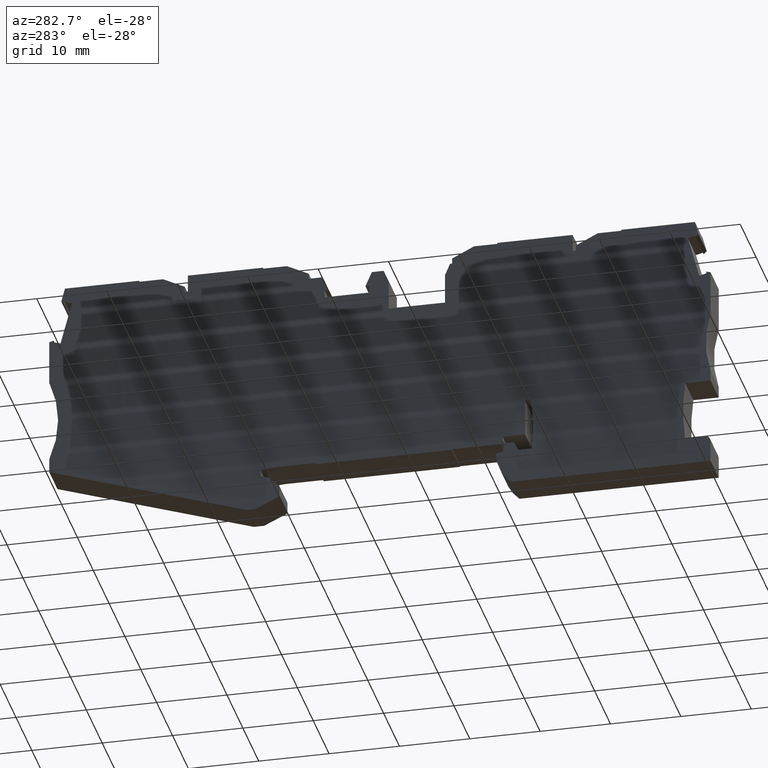
[diagram: clean part render]
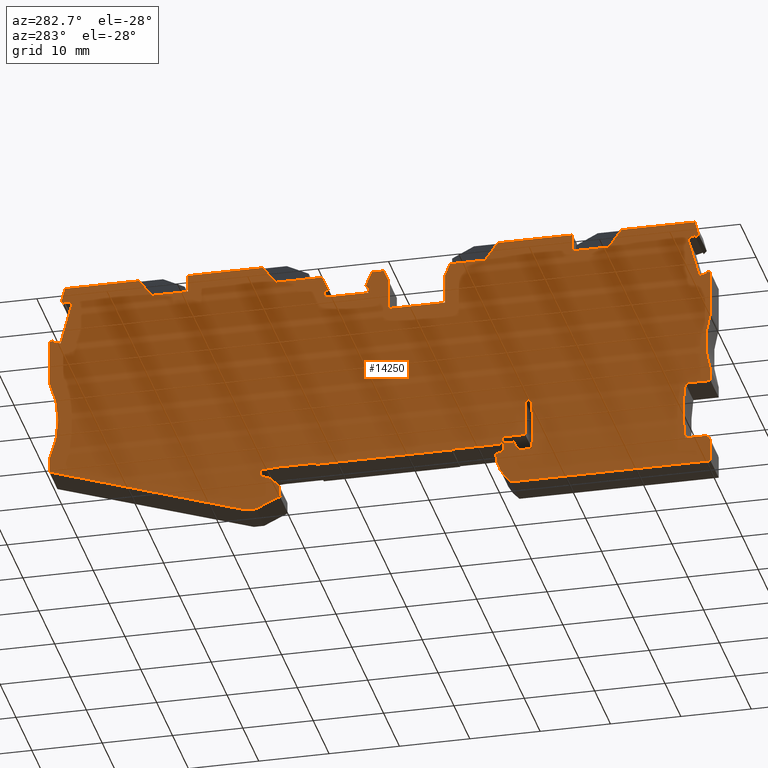
[diagram: same view with one face highlighted and labeled with its STEP entity id]
A machine part, auxiliary view. The second image highlights one B-rep face of the part: STEP entity #14250.
In plain terms, the highlighted planar face has unit normal (-1, 0, 0).
Its self-contained STEP definition (entity closure, byte-faithful):
#120=CARTESIAN_POINT('',(52.0264251236377,4.89735926884869,
-5.15000000007079));
#130=VERTEX_POINT('',#120);
#280=CARTESIAN_POINT('',(50.7320747686653,3.2406663628757,
-5.15000000007186));
#290=VERTEX_POINT('',#280);
#320=CARTESIAN_POINT('',(48.2001887190481,1.64994100184898E-12,
-5.15000000007395));
#330=DIRECTION('',(-0.615661475325658,-0.788010753606723,
-5.08327445958136E-13));
#340=VECTOR('',#330,1.);
#350=LINE('',#320,#340);
#360=EDGE_CURVE('',#130,#290,#350,.T.);
#590=CARTESIAN_POINT('',(50.9335437868773,1.59983288405357,
-5.15000000007281));
#600=VERTEX_POINT('',#590);
#750=CARTESIAN_POINT('',(54.4182978726985,0.467567645042185,
-5.15000000007321));
#760=VERTEX_POINT('',#750);
#790=CARTESIAN_POINT('',(-1.69343616989078E-12,18.1491444593517,
-5.15000000006689));
#800=DIRECTION('',(0.951056516295154,-0.309016994374947,
-1.10549333441268E-13));
#810=VECTOR('',#800,1.);
#820=LINE('',#790,#810);
#830=EDGE_CURVE('',#600,#760,#820,.T.);
#7720=CARTESIAN_POINT('',(51.2005685226322,33.1653725649591,
-5.15000000004703));
#7730=DIRECTION('',(7.41216508193737E-14,5.86845761098081E-13,-1.));
#7740=DIRECTION('',(-0.992546151641485,-0.121869343403826,
-1.45087666858425E-13));
#7750=AXIS2_PLACEMENT_3D('',#7720,#7730,#7740);
#7760=PLANE('',#7750);
#7770=ORIENTED_EDGE('',*,*,#830,.F.);
#7780=CARTESIAN_POINT('',(-2.61004901279394E-12,-6.21415916436368,
-5.15000000008119));
#7790=DIRECTION('',(0.992546151641272,0.121869343405557,
1.45408273460483E-13));
#7800=VECTOR('',#7790,1.);
#7810=LINE('',#7780,#7800);
#7820=CARTESIAN_POINT('',(55.8575904551349,0.644290552788054,
-5.150000000073));
#7830=VERTEX_POINT('',#7820);
#7840=EDGE_CURVE('',#760,#7830,#7810,.T.);
#7850=ORIENTED_EDGE('',*,*,#7840,.F.);
#7860=CARTESIAN_POINT('',(-3.34227452304577E-12,-25.6765009430287,
-5.15000000009261));
#7870=DIRECTION('',(0.904601039469285,0.426259263114703,
3.17498382901155E-13));
#7880=VECTOR('',#7870,1.);
#7890=LINE('',#7860,#7880);
#7900=CARTESIAN_POINT('',(82.4574372953299,13.1784692883304,
-5.15000000006367));
#7910=VERTEX_POINT('',#7900);
#7920=EDGE_CURVE('',#7830,#7910,#7890,.T.);
#7930=ORIENTED_EDGE('',*,*,#7920,.F.);
#7940=CARTESIAN_POINT('',(84.0755498602694,3.00213671199295E-13,
-5.15000000007128));
#7950=DIRECTION('',(-0.12186934340511,0.992546151641327,
5.73390757286388E-13));
#7960=VECTOR('',#7950,1.);
#7970=LINE('',#7940,#7960);
#7980=CARTESIAN_POINT('',(82.2135822231573,15.1645094743228,
-5.15000000005742));
#7990=VERTEX_POINT('',#7980);
#8000=EDGE_CURVE('',#7910,#7990,#7970,.T.);
#8010=ORIENTED_EDGE('',*,*,#8000,.F.);
#8020=CARTESIAN_POINT('',(95.1276197746272,22.7952128573161,
-5.15000000005708));
#8030=DIRECTION('',(-2.47610274017394E-14,-3.00054079505067E-15,1.));
#8040=DIRECTION('',(0.992546151641327,0.12186934340511,
2.49421363947495E-14));
#8050=AXIS2_PLACEMENT_3D('',#8020,#8030,#8040);
#8060=CIRCLE('',#8050,15.);
#8070=CARTESIAN_POINT('',(80.7511501013408,27.0750632908097,
-5.15000000005742));
#8080=VERTEX_POINT('',#8070);
#8090=EDGE_CURVE('',#8080,#7990,#8060,.T.);
#8100=ORIENTED_EDGE('',*,*,#8090,.T.);
#8110=CARTESIAN_POINT('',(83.8121891997318,2.14490044393082,
-5.150000000069));
#8120=DIRECTION('',(-0.12186934340511,0.992546151641328,
-1.25369758141076E-16));
#8130=VECTOR('',#8120,1.);
#8140=LINE('',#8110,#8130);
#8150=CARTESIAN_POINT('',(79.971195970816,33.4272799277345,
-5.15000000005197));
#8160=VERTEX_POINT('',#8150);
#8170=EDGE_CURVE('',#8080,#8160,#8140,.T.);
#8180=ORIENTED_EDGE('',*,*,#8170,.F.);
#8190=CARTESIAN_POINT('',(84.3935909987457,32.8057528391582,
-5.15000000010181));
#8200=DIRECTION('',(0.990268068742578,-0.139173100952904,
4.79939087970401E-14));
#8210=VECTOR('',#8200,1.);
#8220=LINE('',#8190,#8210);
#8230=CARTESIAN_POINT('',(79.3161911343738,33.5193348541774,
-5.15000000005197));
#8240=VERTEX_POINT('',#8230);
#8250=EDGE_CURVE('',#8240,#8160,#8220,.T.);
#8260=ORIENTED_EDGE('',*,*,#8250,.T.);
#8270=CARTESIAN_POINT('',(88.5328933703175,10.7071963181875,
-5.15000000006886));
#8280=DIRECTION('',(0.374606593416575,-0.927183854566521,
6.59579020590538E-15));
#8290=VECTOR('',#8280,1.);
#8300=LINE('',#8270,#8290);
#8310=CARTESIAN_POINT('',(79.4181993646876,33.2668556243878,
-5.15000000005211));
#8320=VERTEX_POINT('',#8310);
#8330=EDGE_CURVE('',#8240,#8320,#8300,.T.);
#8340=ORIENTED_EDGE('',*,*,#8330,.F.);
#8350=CARTESIAN_POINT('',(83.8338176270038,35.0508812056414,
-5.15000000006891));
#8360=DIRECTION('',(0.927183854566705,0.374606593416117,
2.41441940387461E-14));
#8370=VECTOR('',#8360,1.);
#8380=LINE('',#8350,#8370);
#8390=CARTESIAN_POINT('',(78.426112640302,32.8660265694329,
-5.15000000005242));
#8400=VERTEX_POINT('',#8390);
#8410=EDGE_CURVE('',#8400,#8320,#8380,.T.);
#8420=ORIENTED_EDGE('',*,*,#8410,.T.);
#8430=CARTESIAN_POINT('',(87.4844737959631,10.445795959572,
-5.15000000010179));
#8440=DIRECTION('',(-0.374606593416094,0.927183854566715,
-1.29656948096796E-14));
#8450=VECTOR('',#8440,1.);
#8460=LINE('',#8430,#8450);
#8470=CARTESIAN_POINT('',(76.0567259369452,38.7304644495676,
-5.15000000004915));
#8480=VERTEX_POINT('',#8470);
#8490=EDGE_CURVE('',#8400,#8480,#8460,.T.);
#8500=ORIENTED_EDGE('',*,*,#8490,.F.);
#8510=CARTESIAN_POINT('',(82.288623918383,41.2483146707968,
-5.15000000006893));
#8520=DIRECTION('',(-0.927183854566836,-0.374606593415795,
-2.41441940387486E-14));
#8530=VECTOR('',#8520,1.);
#8540=LINE('',#8510,#8530);
#8550=CARTESIAN_POINT('',(77.0488126613318,39.1312935045226,
-5.15000000004884));
#8560=VERTEX_POINT('',#8550);
#8570=EDGE_CURVE('',#8560,#8480,#8540,.T.);
#8580=ORIENTED_EDGE('',*,*,#8570,.T.);
#8590=CARTESIAN_POINT('',(88.5328933702816,10.7071963181785,
-5.15000000006886));
#8600=DIRECTION('',(-0.374606593415338,0.927183854567021,
-6.59579020587315E-15));
#8610=VECTOR('',#8600,1.);
#8620=LINE('',#8590,#8610);
#8630=CARTESIAN_POINT('',(77.1508208916462,38.8788142747308,
-5.15000000004898));
#8640=VERTEX_POINT('',#8630);
#8650=EDGE_CURVE('',#8640,#8560,#8620,.T.);
#8660=ORIENTED_EDGE('',*,*,#8650,.T.);
#8670=CARTESIAN_POINT('',(81.4935363772037,44.4372366214501,
-5.15000000010189));
#8680=DIRECTION('',(0.615661475326719,0.788010753605894,
3.50143361995355E-14));
#8690=VECTOR('',#8680,1.);
#8700=LINE('',#8670,#8690);
#8710=CARTESIAN_POINT('',(77.5276003492662,39.3610699886925,
-5.15000000004867));
#8720=VERTEX_POINT('',#8710);
#8730=EDGE_CURVE('',#8640,#8720,#8700,.T.);
#8740=ORIENTED_EDGE('',*,*,#8730,.F.);
#8750=CARTESIAN_POINT('',(89.0522040005948,10.8366750004897,
-5.15000000010171));
#8760=DIRECTION('',(-0.374606593416298,0.927183854566633,
-1.29518170218772E-14));
#8770=VECTOR('',#8760,1.);
#8780=LINE('',#8750,#8770);
#8790=CARTESIAN_POINT('',(76.7664159758294,41.2450674244096,
-5.15000000004762));
#8800=VERTEX_POINT('',#8790);
#8810=EDGE_CURVE('',#8720,#8800,#8780,.T.);
#8820=ORIENTED_EDGE('',*,*,#8810,.F.);
#8830=CARTESIAN_POINT('',(82.1253763220979,41.9030650174223,
-5.15000000006893));
#8840=DIRECTION('',(0.99254615164132,0.121869343405168,
2.50286166997453E-14));
#8850=VECTOR('',#8840,1.);
#8860=LINE('',#8830,#8850);
#8870=CARTESIAN_POINT('',(66.3229877196629,39.962775671655,
-5.15000000004185));
#8880=VERTEX_POINT('',#8870);
#8890=EDGE_CURVE('',#8880,#8800,#8860,.T.);
#8900=ORIENTED_EDGE('',*,*,#8890,.T.);
#8910=CARTESIAN_POINT('',(43.6250560928358,-0.477025041583244,
-5.15000000006996));
#8920=DIRECTION('',(0.489450898605579,0.872030858315343,
1.47204826611017E-14));
#8930=VECTOR('',#8920,1.);
#8940=LINE('',#8910,#8930);
#8950=CARTESIAN_POINT('',(64.8046171261849,37.2575686414021,
-5.15000000004355));
#8960=VERTEX_POINT('',#8950);
#8970=EDGE_CURVE('',#8960,#8880,#8940,.T.);
#8980=ORIENTED_EDGE('',*,*,#8970,.T.);
#8990=CARTESIAN_POINT('',(-0.099254615165407,29.2883752487444,
-5.1500000000603));
#9000=DIRECTION('',(-0.992546151641327,-0.12186934340511,
-1.45408273460483E-13));
#9010=VECTOR('',#9000,1.);
#9020=LINE('',#8990,#9010);
#9030=CARTESIAN_POINT('',(59.7294653242699,36.6344183558886,
-5.1500000000443));
#9040=VERTEX_POINT('',#9030);
#9050=EDGE_CURVE('',#8960,#9040,#9020,.T.);
#9060=ORIENTED_EDGE('',*,*,#9050,.F.);
#9070=CARTESIAN_POINT('',(64.2283544797225,-0.00609346716928474,
-5.1500000000727));
#9080=DIRECTION('',(-0.121869343405168,0.99254615164132,
5.73383818392483E-13));
#9090=VECTOR('',#9080,1.);
#9100=LINE('',#9070,#9090);
#9110=CARTESIAN_POINT('',(59.4247919657573,39.1157837349896,
-5.15000000004286));
#9120=VERTEX_POINT('',#9110);
#9130=EDGE_CURVE('',#9040,#9120,#9100,.T.);
#9140=ORIENTED_EDGE('',*,*,#9130,.F.);
#9150=CARTESIAN_POINT('',(-0.0992546151653123,31.8071498123857,
-5.15000000005882));
#9160=DIRECTION('',(0.99254615164132,0.121869343405168,
1.45408273460483E-13));
#9170=VECTOR('',#9160,1.);
#9180=LINE('',#9150,#9170);
#9190=CARTESIAN_POINT('',(48.8541754507756,37.8178752277243,
-5.15000000004441));
#9200=VERTEX_POINT('',#9190);
#9210=EDGE_CURVE('',#9200,#9120,#9180,.T.);
#9220=ORIENTED_EDGE('',*,*,#9210,.T.);
#9230=CARTESIAN_POINT('',(26.1562438239485,-2.62192548551385,
-5.15000000007052));
#9240=DIRECTION('',(0.489450898605579,0.872030858315343,
1.47204826611017E-14));
#9250=VECTOR('',#9240,1.);
#9260=LINE('',#9230,#9250);
#9270=CARTESIAN_POINT('',(47.3358048572974,35.1126681974712,
-5.15000000004611));
#9280=VERTEX_POINT('',#9270);
#9290=EDGE_CURVE('',#9280,#9200,#9260,.T.);
#9300=ORIENTED_EDGE('',*,*,#9290,.T.);
#9310=CARTESIAN_POINT('',(-1.20783826654256E-12,29.3005621830843,
-5.15000000007112));
#9320=DIRECTION('',(-0.992546151641327,-0.12186934340511,
-2.50403622964061E-14));
#9330=VECTOR('',#9320,1.);
#9340=LINE('',#9310,#9330);
#9350=CARTESIAN_POINT('',(40.831043548231,34.3139839363598,
-5.15000000005436));
#9360=VERTEX_POINT('',#9350);
#9370=EDGE_CURVE('',#9280,#9360,#9340,.T.);
#9380=ORIENTED_EDGE('',*,*,#9370,.F.);
#9390=CARTESIAN_POINT('',(30.5211237682836,1.56001184636607E-12,
-5.15000000007045));
#9400=DIRECTION('',(0.287750497361325,0.957705409438786,
9.95947716779486E-15));
#9410=VECTOR('',#9400,1.);
#9420=LINE('',#9390,#9410);
#9430=CARTESIAN_POINT('',(40.1694208776443,32.1119387046792,
-5.15000000005571));
#9440=VERTEX_POINT('',#9430);
#9450=EDGE_CURVE('',#9440,#9360,#9420,.T.);
#9460=ORIENTED_EDGE('',*,*,#9450,.T.);
#9470=CARTESIAN_POINT('',(-1.28742273508186E-12,27.179754000494,
-5.15000000007113));
#9480=DIRECTION('',(-0.992546151641324,-0.121869343405136,
-2.50403622964061E-14));
#9490=VECTOR('',#9480,1.);
#9500=LINE('',#9470,#9490);
#9510=CARTESIAN_POINT('',(40.6933844696089,32.1762733442477,
-5.15000000005563));
#9520=VERTEX_POINT('',#9510);
#9530=EDGE_CURVE('',#9520,#9440,#9500,.T.);
#9540=ORIENTED_EDGE('',*,*,#9530,.T.);
#9550=CARTESIAN_POINT('',(44.6441340636736,1.03003828357081E-12,
-5.1500000000701));
#9560=DIRECTION('',(-0.121869343405136,0.992546151641324,
-1.25369758141743E-16));
#9570=VECTOR('',#9560,1.);
#9580=LINE('',#9550,#9570);
#9590=CARTESIAN_POINT('',(40.8237846670524,31.1142489619915,
-5.15000000005624));
#9600=VERTEX_POINT('',#9590);
#9610=EDGE_CURVE('',#9600,#9520,#9580,.T.);
#9620=ORIENTED_EDGE('',*,*,#9610,.T.);
#9630=CARTESIAN_POINT('',(-1.32787659794973E-12,26.1017184872554,
-5.15000000007113));
#9640=DIRECTION('',(0.992546151641331,0.121869343405079,
2.50403622964061E-14));
#9650=VECTOR('',#9640,1.);
#9660=LINE('',#9630,#9650);
#9670=CARTESIAN_POINT('',(34.5459302579208,30.3434253649544,
-5.15000000005716));
#9680=VERTEX_POINT('',#9670);
#9690=EDGE_CURVE('',#9680,#9600,#9660,.T.);
#9700=ORIENTED_EDGE('',*,*,#9690,.T.);
#9710=CARTESIAN_POINT('',(38.2716344176463,1.26916976267332E-12,
-5.15000000007026));
#9720=DIRECTION('',(0.121869343405136,-0.992546151641324,
1.25369758141743E-16));
#9730=VECTOR('',#9720,1.);
#9740=LINE('',#9710,#9730);
#9750=CARTESIAN_POINT('',(34.4155300604774,31.4054497472102,
-5.15000000005655));
#9760=VERTEX_POINT('',#9750);
#9770=EDGE_CURVE('',#9760,#9680,#9740,.T.);
#9780=ORIENTED_EDGE('',*,*,#9770,.T.);
#9790=CARTESIAN_POINT('',(-1.28742273508186E-12,27.179754000494,
-5.15000000007113));
#9800=DIRECTION('',(-0.992546151641324,-0.121869343405136,
-2.50403622964061E-14));
#9810=VECTOR('',#9800,1.);
#9820=LINE('',#9790,#9810);
#9830=CARTESIAN_POINT('',(34.9394936524405,31.4697843867785,
-5.15000000005647));
#9840=VERTEX_POINT('',#9830);
#9850=EDGE_CURVE('',#9840,#9760,#9820,.T.);
#9860=ORIENTED_EDGE('',*,*,#9850,.T.);
#9870=CARTESIAN_POINT('',(53.6422195780373,6.92380281583778E-13,
-5.15000000006987));
#9880=DIRECTION('',(0.510892985900211,-0.859644320028911,
1.01890289076771E-14));
#9890=VECTOR('',#9880,1.);
#9900=LINE('',#9870,#9890);
#9910=CARTESIAN_POINT('',(33.7648010461208,33.4463584535049,
-5.1500000000554));
#9920=VERTEX_POINT('',#9910);
#9930=EDGE_CURVE('',#9920,#9840,#9900,.T.);
#9940=ORIENTED_EDGE('',*,*,#9930,.T.);
#9950=CARTESIAN_POINT('',(-1.21494369390035E-12,29.3005621830791,
-5.15000000007112));
#9960=DIRECTION('',(-0.992546151641309,-0.121869343405257,
-2.50403622964062E-14));
#9970=VECTOR('',#9960,1.);
#9980=LINE('',#9950,#9970);
#9990=CARTESIAN_POINT('',(32.1054168262365,33.242611690697,
-5.15000000005564));
#10000=VERTEX_POINT('',#9990);
#10010=EDGE_CURVE('',#9920,#10000,#9980,.T.);
#10020=ORIENTED_EDGE('',*,*,#10010,.F.);
#10030=CARTESIAN_POINT('',(22.6289845756429,1.85616861737437E-12,
-5.15000000007064));
#10040=DIRECTION('',(-0.274147194873179,-0.961687743263461,
-9.63283387656871E-15));
#10050=VECTOR('',#10040,1.);
#10060=LINE('',#10030,#10050);
#10070=CARTESIAN_POINT('',(31.599450578697,31.4677201438811,
-5.15000000005672));
#10080=VERTEX_POINT('',#10070);
#10090=EDGE_CURVE('',#10000,#10080,#10060,.T.);
#10100=ORIENTED_EDGE('',*,*,#10090,.F.);
#10110=CARTESIAN_POINT('',(35.4632007791786,1.3745577465466E-12,
-5.15000000007033));
#10120=DIRECTION('',(0.121869343405142,-0.992546151641324,
1.25369758141894E-16));
#10130=VECTOR('',#10120,1.);
#10140=LINE('',#10110,#10130);
#10150=CARTESIAN_POINT('',(32.1234887553389,27.1997716918252,
-5.15000000005919));
#10160=VERTEX_POINT('',#10150);
#10170=EDGE_CURVE('',#10080,#10160,#10140,.T.);
#10180=ORIENTED_EDGE('',*,*,#10170,.F.);
#10190=CARTESIAN_POINT('',(-1.43468235739096E-12,23.2555032303317,
-5.15000000007114));
#10200=DIRECTION('',(-0.992546151641324,-0.121869343405136,
-2.50403622964061E-14));
#10210=VECTOR('',#10200,1.);
#10220=LINE('',#10190,#10210);
#10230=CARTESIAN_POINT('',(24.1831195422085,26.2248169445842,
-5.15000000006035));
#10240=VERTEX_POINT('',#10230);
#10250=EDGE_CURVE('',#10160,#10240,#10220,.T.);
#10260=ORIENTED_EDGE('',*,*,#10250,.F.);
#10270=CARTESIAN_POINT('',(27.4031221755071,1.68412196170197E-12,
-5.15000000010404));
#10280=DIRECTION('',(0.121869343405144,-0.992546151641323,
1.26713462326608E-16));
#10290=VECTOR('',#10280,1.);
#10300=LINE('',#10270,#10290);
#10310=CARTESIAN_POINT('',(23.6590813655666,30.4927653966403,
-5.15000000005789));
#10320=VERTEX_POINT('',#10310);
#10330=EDGE_CURVE('',#10320,#10240,#10300,.T.);
#10340=ORIENTED_EDGE('',*,*,#10330,.T.);
#10350=CARTESIAN_POINT('',(41.2011308712341,1.16634425886034E-12,
-5.15000000007018));
#10360=DIRECTION('',(-0.498657173381242,0.866799298243504,
-9.86466764618313E-15));
#10370=VECTOR('',#10360,1.);
#10380=LINE('',#10350,#10370);
#10390=CARTESIAN_POINT('',(22.7387593504495,32.0925307654053,
-5.15000000005701));
#10400=VERTEX_POINT('',#10390);
#10410=EDGE_CURVE('',#10320,#10400,#10380,.T.);
#10420=ORIENTED_EDGE('',*,*,#10410,.F.);
#10430=CARTESIAN_POINT('',(-1.19362741182735E-12,29.3005621830843,
-5.15000000007112));
#10440=DIRECTION('',(0.992546151641327,0.12186934340511,
2.50394313100733E-14));
#10450=VECTOR('',#10440,1.);
#10460=LINE('',#10430,#10450);
#10470=CARTESIAN_POINT('',(17.8308512977738,31.4899154302059,
-5.15000000005773));
#10480=VERTEX_POINT('',#10470);
#10490=EDGE_CURVE('',#10480,#10400,#10460,.T.);
#10500=ORIENTED_EDGE('',*,*,#10490,.T.);
#10510=CARTESIAN_POINT('',(47.5101132863038,9.29596298036539E-13,
-5.15000000007003));
#10520=DIRECTION('',(-0.68587547340398,0.727718925810555,
-1.49273732731986E-14));
#10530=VECTOR('',#10520,1.);
#10540=LINE('',#10510,#10530);
#10550=CARTESIAN_POINT('',(15.70313398727,33.7474391581558,
-5.15000000005657));
#10560=VERTEX_POINT('',#10550);
#10570=EDGE_CURVE('',#10480,#10560,#10540,.T.);
#10580=ORIENTED_EDGE('',*,*,#10570,.F.);
#10590=CARTESIAN_POINT('',(-1.17912686237267E-12,31.8193367467298,
-5.15000000005887));
#10600=DIRECTION('',(-0.992546151641327,-0.12186934340511,
-1.45408273460483E-13));
#10610=VECTOR('',#10600,1.);
#10620=LINE('',#10590,#10610);
#10630=CARTESIAN_POINT('',(5.13251747228705,32.449530650891,
-5.15000000005811));
#10640=VERTEX_POINT('',#10630);
#10650=EDGE_CURVE('',#10560,#10640,#10620,.T.);
#10660=ORIENTED_EDGE('',*,*,#10650,.F.);
#10670=CARTESIAN_POINT('',(9.11681884476168,3.12036222731234E-12,
-5.15000000007686));
#10680=DIRECTION('',(0.121869343405148,-0.992546151641322,
-5.73383818392484E-13));
#10690=VECTOR('',#10680,1.);
#10700=LINE('',#10670,#10690);
#10710=CARTESIAN_POINT('',(5.43719083079981,29.9681652717886,
-5.15000000005955));
#10720=VERTEX_POINT('',#10710);
#10730=EDGE_CURVE('',#10640,#10720,#10700,.T.);
#10740=ORIENTED_EDGE('',*,*,#10730,.F.);
#10750=CARTESIAN_POINT('',(-1.27388991869187E-12,29.3005621830836,
-5.15000000006035));
#10760=DIRECTION('',(0.992546151641327,0.12186934340511,
1.45408273460483E-13));
#10770=VECTOR('',#10760,1.);
#10780=LINE('',#10750,#10770);
#10790=CARTESIAN_POINT('',(0.362039028886501,29.3450149862753,
-5.15000000006029));
#10800=VERTEX_POINT('',#10790);
#10810=EDGE_CURVE('',#10800,#10720,#10780,.T.);
#10820=ORIENTED_EDGE('',*,*,#10810,.T.);
#10830=CARTESIAN_POINT('',(30.0413010174165,-2.14490044392967,
-5.1500000000614));
#10840=DIRECTION('',(-0.68587547340398,0.727718925810555,
-1.49273732731986E-14));
#10850=VECTOR('',#10840,1.);
#10860=LINE('',#10830,#10850);
#10870=CARTESIAN_POINT('',(-1.76567828161734,31.6025387142252,
-5.15000000005912));
#10880=VERTEX_POINT('',#10870);
#10890=EDGE_CURVE('',#10800,#10880,#10860,.T.);
#10900=ORIENTED_EDGE('',*,*,#10890,.F.);
#10910=CARTESIAN_POINT('',(-17.4688122688884,29.6744363027993,
-5.15000000006249));
#10920=DIRECTION('',(-0.992546151641327,-0.12186934340511,
-2.50394313100733E-14));
#10930=VECTOR('',#10920,1.);
#10940=LINE('',#10910,#10930);
#10950=CARTESIAN_POINT('',(-12.1098519226198,30.3324338958117,
-5.15000000006064));
#10960=VERTEX_POINT('',#10950);
#10970=EDGE_CURVE('',#10880,#10960,#10940,.T.);
#10980=ORIENTED_EDGE('',*,*,#10970,.F.);
#10990=CARTESIAN_POINT('',(-16.6742435996498,-2.14490044392792,
-5.15000000009542));
#11000=DIRECTION('',(0.139173100960494,0.990268068741511,
2.25907981490279E-18));
#11010=VECTOR('',#11000,1.);
#11020=LINE('',#10990,#11010);
#11030=CARTESIAN_POINT('',(-12.3926456361201,28.3202520690979,
-5.15000000006184));
#11040=VERTEX_POINT('',#11030);
#11050=EDGE_CURVE('',#11040,#10960,#11020,.T.);
#11060=ORIENTED_EDGE('',*,*,#11050,.T.);
#11070=CARTESIAN_POINT('',(-17.4688122688883,32.2861880970218,
-5.15000000009543));
#11080=DIRECTION('',(-0.78801075360754,0.615661475324612,
-3.92405713910446E-16));
#11090=VECTOR('',#11080,1.);
#11100=LINE('',#11070,#11090);
#11110=CARTESIAN_POINT('',(-11.9103899221574,27.9434726114791,
-5.15000000006203));
#11120=VERTEX_POINT('',#11110);
#11130=EDGE_CURVE('',#11120,#11040,#11100,.T.);
#11140=ORIENTED_EDGE('',*,*,#11130,.T.);
#11150=CARTESIAN_POINT('',(-16.1390349861828,-2.14490044392794,
-5.15000000006255));
#11160=DIRECTION('',(0.139173100959469,0.990268068741655,
6.35828589576885E-15));
#11170=VECTOR('',#11160,1.);
#11180=LINE('',#11150,#11170);
#11190=CARTESIAN_POINT('',(-11.8724920261092,28.213130153564,
-5.15000000006187));
#11200=VERTEX_POINT('',#11190);
#11210=EDGE_CURVE('',#11120,#11200,#11180,.T.);
#11220=ORIENTED_EDGE('',*,*,#11210,.F.);
#11230=CARTESIAN_POINT('',(-17.4688122688884,28.9996416717454,
-5.15000000006249));
#11240=DIRECTION('',(0.990268068741586,-0.139173100959957,
2.42190292353126E-14));
#11250=VECTOR('',#11240,1.);
#11260=LINE('',#11230,#11250);
#11270=CARTESIAN_POINT('',(-10.8129051925555,28.0642149355368,
-5.15000000006188));
#11280=VERTEX_POINT('',#11270);
#11290=EDGE_CURVE('',#11200,#11280,#11260,.T.);
#11300=ORIENTED_EDGE('',*,*,#11290,.F.);
#11310=CARTESIAN_POINT('',(-15.0585194836129,-2.14490044392798,
-5.15000000009542));
#11320=DIRECTION('',(0.139173100960276,0.990268068741541,
-1.16187079982452E-17));
#11330=VECTOR('',#11320,1.);
#11340=LINE('',#11310,#11330);
#11350=CARTESIAN_POINT('',(-11.6931750561293,21.8007694007463,
-5.15000000006562));
#11360=VERTEX_POINT('',#11350);
#11370=EDGE_CURVE('',#11360,#11280,#11340,.T.);
#11380=ORIENTED_EDGE('',*,*,#11370,.T.);
#11390=CARTESIAN_POINT('',(-17.4688122688886,22.612482275567,
-5.15000000006251));
#11400=DIRECTION('',(-0.990268068741538,0.139173100960301,
-2.42190292353103E-14));
#11410=VECTOR('',#11400,1.);
#11420=LINE('',#11390,#11410);
#11430=CARTESIAN_POINT('',(-12.7527618896819,21.9496846187736,
-5.15000000006561));
#11440=VERTEX_POINT('',#11430);
#11450=EDGE_CURVE('',#11360,#11440,#11420,.T.);
#11460=ORIENTED_EDGE('',*,*,#11450,.F.);
#11470=CARTESIAN_POINT('',(-16.1390349862197,-2.14490044392794,
-5.15000000006255));
#11480=DIRECTION('',(-0.13917310096079,-0.990268068741469,
-6.3582858958012E-15));
#11490=VECTOR('',#11480,1.);
#11500=LINE('',#11470,#11490);
#11510=CARTESIAN_POINT('',(-12.7148639936336,22.2193421608562,
-5.15000000006545));
#11520=VERTEX_POINT('',#11510);
#11530=EDGE_CURVE('',#11520,#11440,#11500,.T.);
#11540=ORIENTED_EDGE('',*,*,#11530,.T.);
#11550=CARTESIAN_POINT('',(-17.4688122688887,20.2986223814294,
-5.15000000009542));
#11560=DIRECTION('',(-0.927183854569503,-0.374606593409191,
-3.66909218123641E-16));
#11570=VECTOR('',#11560,1.);
#11580=LINE('',#11550,#11570);
#11590=CARTESIAN_POINT('',(-13.3281422848194,21.971561647487,
-5.15000000006564));
#11600=VERTEX_POINT('',#11590);
#11610=EDGE_CURVE('',#11520,#11600,#11580,.T.);
#11620=ORIENTED_EDGE('',*,*,#11610,.F.);
#11630=CARTESIAN_POINT('',(-10.3670130763944,-2.14490044392815,
-5.15000000009542));
#11640=DIRECTION('',(-0.12186934340511,0.992546151641327,
-1.2671346232575E-16));
#11650=VECTOR('',#11640,1.);
#11660=LINE('',#11630,#11650);
#11670=CARTESIAN_POINT('',(-12.5481881546684,15.6193450136062,
-5.15000000006931));
#11680=VERTEX_POINT('',#11670);
#11690=EDGE_CURVE('',#11680,#11600,#11660,.T.);
#11700=ORIENTED_EDGE('',*,*,#11690,.T.);
#11710=CARTESIAN_POINT('',(-26.2022063583376,9.40904816934249,
-5.15000000007397));
#11720=DIRECTION('',(-2.48736047506293E-14,-2.91886266429657E-15,1.));
#11730=DIRECTION('',(-0.992546151641323,-0.121869343405144,
-2.50439205489866E-14));
#11740=AXIS2_PLACEMENT_3D('',#11710,#11720,#11730);
#11750=CIRCLE('',#11740,15.);
#11760=CARTESIAN_POINT('',(-11.451364064022,6.68642964883116,
-5.15000000007447));
#11770=VERTEX_POINT('',#11760);
#11780=EDGE_CURVE('',#11770,#11680,#11750,.T.);
#11790=ORIENTED_EDGE('',*,*,#11780,.T.);
#11800=CARTESIAN_POINT('',(-10.6303737355826,3.86330458890625E-12,
-5.15000000007833));
#11810=DIRECTION('',(0.121869343405148,-0.992546151641322,
-5.73383818392484E-13));
#11820=VECTOR('',#11810,1.);
#11830=LINE('',#11800,#11820);
#11840=CARTESIAN_POINT('',(-11.2563731145736,5.09835580620355,
-5.15000000007539));
#11850=VERTEX_POINT('',#11840);
#11860=EDGE_CURVE('',#11770,#11850,#11830,.T.);
#11870=ORIENTED_EDGE('',*,*,#11860,.F.);
#11880=CARTESIAN_POINT('',(-2.13244320894434E-12,6.48046463643547,
-5.15000000007374));
#11890=DIRECTION('',(-0.992546151641322,-0.121869343405148,
-1.45408273460483E-13));
#11900=VECTOR('',#11890,1.);
#11910=LINE('',#11880,#11900);
#11920=CARTESIAN_POINT('',(-7.68320696864706,5.53708544246425,
-5.1500000000981));
#11930=VERTEX_POINT('',#11920);
#11940=EDGE_CURVE('',#11930,#11850,#11910,.T.);
#11950=ORIENTED_EDGE('',*,*,#11940,.T.);
#11960=CARTESIAN_POINT('',(-38.306617659434,-2.60566433329631,
-5.15000000008192));
#11970=DIRECTION('',(5.11484905320667E-13,6.28767212301405E-14,1.));
#11980=DIRECTION('',(0.992546151641322,0.121869343405148,
-5.15335119130525E-13));
#11990=AXIS2_PLACEMENT_3D('',#11960,#11970,#11980);
#12000=CIRCLE('',#11990,31.6874999999566);
#12010=CARTESIAN_POINT('',(-6.62153597596458,-2.99714224981679,
-5.1500000000981));
#12020=VERTEX_POINT('',#12010);
#12030=EDGE_CURVE('',#12020,#11930,#12000,.T.);
#12040=ORIENTED_EDGE('',*,*,#12030,.T.);
#12050=CARTESIAN_POINT('',(-2.45842812268231E-12,-2.18411986250549,
-5.15000000007882));
#12060=DIRECTION('',(-0.992546151641322,-0.121869343405148,
-1.45408273460483E-13));
#12070=VECTOR('',#12060,1.);
#12080=LINE('',#12050,#12070);
#12090=CARTESIAN_POINT('',(-9.31500522479447,-3.32785868883985,
-5.1500000000807));
#12100=VERTEX_POINT('',#12090);
#12110=EDGE_CURVE('',#12020,#12100,#12080,.T.);
#12120=ORIENTED_EDGE('',*,*,#12110,.F.);
#12130=CARTESIAN_POINT('',(-9.20532281572982,-4.22115022531685,
-5.15000000003738));
#12140=DIRECTION('',(5.11484905320667E-13,6.28767212301405E-14,1.));
#12150=DIRECTION('',(0.992546151641322,0.121869343405148,
-5.15335119130526E-13));
#12160=AXIS2_PLACEMENT_3D('',#12130,#12140,#12150);
#12170=CIRCLE('',#12160,0.899999999999821);
#12180=CARTESIAN_POINT('',(-10.0986143522068,-4.3308326343815,
-5.15000000008083));
#12190=VERTEX_POINT('',#12180);
#12200=EDGE_CURVE('',#12100,#12190,#12170,.T.);
#12210=ORIENTED_EDGE('',*,*,#12200,.F.);
#12220=CARTESIAN_POINT('',(-10.6303737355622,3.86330458890548E-12,
-5.15000000007833));
#12230=DIRECTION('',(0.121869343404785,-0.992546151641367,
-5.73383818392493E-13));
#12240=VECTOR('',#12230,1.);
#12250=LINE('',#12220,#12240);
#12260=CARTESIAN_POINT('',(-9.7208193876492,-7.40772570449238,
-5.15000000008261));
#12270=VERTEX_POINT('',#12260);
#12280=EDGE_CURVE('',#12190,#12270,#12250,.T.);
#12290=ORIENTED_EDGE('',*,*,#12280,.F.);
#12300=CARTESIAN_POINT('',(-2.61004901279374E-12,-6.21415916435812,
-5.15000000008119));
#12310=DIRECTION('',(0.992546151641253,0.121869343405714,
1.45408273460483E-13));
#12320=VECTOR('',#12310,1.);
#12330=LINE('',#12300,#12320);
#12340=CARTESIAN_POINT('',(18.3981893210453,-3.95514556715409,
-5.15000000007854));
#12350=VERTEX_POINT('',#12340);
#12360=EDGE_CURVE('',#12270,#12350,#12330,.T.);
#12370=ORIENTED_EDGE('',*,*,#12360,.F.);
#12380=CARTESIAN_POINT('',(13.4567200165382,0.419997986218075,
-5.15000000007629));
#12390=DIRECTION('',(5.11484905320667E-13,6.28767212301405E-14,1.));
#12400=DIRECTION('',(1.,2.08166817118832E-16,-5.11484905320753E-13));
#12410=AXIS2_PLACEMENT_3D('',#12380,#12390,#12400);
#12420=CIRCLE('',#12410,6.6);
#12430=CARTESIAN_POINT('',(20.0402260336683,0.886311745838163,
-5.15000000007969));
#12440=VERTEX_POINT('',#12430);
#12450=EDGE_CURVE('',#12350,#12440,#12420,.T.);
#12460=ORIENTED_EDGE('',*,*,#12450,.F.);
#12470=CARTESIAN_POINT('',(-1.8461485828902E-12,3.70278184023674,
-5.15000000004258));
#12480=DIRECTION('',(-0.990268068741559,0.139173100960152,
4.97756421110636E-13));
#12490=VECTOR('',#12480,1.);
#12500=LINE('',#12470,#12490);
#12510=CARTESIAN_POINT('',(18.9125049955011,1.04480260185392,
-5.15000000007552));
#12520=VERTEX_POINT('',#12510);
#12530=EDGE_CURVE('',#12440,#12520,#12500,.T.);
#12540=ORIENTED_EDGE('',*,*,#12530,.F.);
#12550=CARTESIAN_POINT('',(19.0407906241999,7.67246087952848E-13,
-5.15000000005209));
#12560=DIRECTION('',(-0.121869343405174,0.992546151641319,
-7.37181117023018E-17));
#12570=VECTOR('',#12560,1.);
#12580=LINE('',#12550,#12570);
#12590=CARTESIAN_POINT('',(18.7540748490744,2.33511259898702,
-5.15000000007477));
#12600=VERTEX_POINT('',#12590);
#12610=EDGE_CURVE('',#12520,#12600,#12580,.T.);
#12620=ORIENTED_EDGE('',*,*,#12610,.F.);
#12630=CARTESIAN_POINT('',(-1.83502415394464E-12,0.0324017535024787,
-5.15000000004235));
#12640=DIRECTION('',(-0.992546151641319,-0.121869343405174,
5.15335119130526E-13));
#12650=VECTOR('',#12640,1.);
#12660=LINE('',#12630,#12650);
#12670=CARTESIAN_POINT('',(17.2652556216125,2.15230858387925,
-5.15000000007499));
#12680=VERTEX_POINT('',#12670);
#12690=EDGE_CURVE('',#12600,#12680,#12660,.T.);
#12700=ORIENTED_EDGE('',*,*,#12690,.F.);
#12710=CARTESIAN_POINT('',(16.5752548948013,7.66747422432849E-13,
-5.15000000005083));
#12720=DIRECTION('',(-0.305282167327245,-0.952261937867928,
2.16022328856885E-13));
#12730=VECTOR('',#12720,1.);
#12740=LINE('',#12710,#12730);
#12750=CARTESIAN_POINT('',(16.8281580770523,0.788876980702605,
-5.15000000007582));
#12760=VERTEX_POINT('',#12750);
#12770=EDGE_CURVE('',#12680,#12760,#12740,.T.);
#12780=ORIENTED_EDGE('',*,*,#12770,.F.);
#12790=CARTESIAN_POINT('',(-2.42431342240743E-12,-1.27736101959368,
-5.15000000007829));
#12800=DIRECTION('',(-0.992546151641319,-0.121869343405174,
-1.45408273460483E-13));
#12810=VECTOR('',#12800,1.);
#12820=LINE('',#12790,#12810);
#12830=CARTESIAN_POINT('',(14.9200659632026,0.55459272834123,
-5.1500000000761));
#12840=VERTEX_POINT('',#12830);
#12850=EDGE_CURVE('',#12760,#12840,#12820,.T.);
#12860=ORIENTED_EDGE('',*,*,#12850,.F.);
#12870=CARTESIAN_POINT('',(45.7868550382898,7.71971578669366,
-5.1500000000696));
#12880=DIRECTION('',(5.11484905320667E-13,6.28767212301405E-14,1.));
#12890=DIRECTION('',(0.992546151641322,0.121869343405148,
-5.15335119130525E-13));
#12900=AXIS2_PLACEMENT_3D('',#12870,#12880,#12890);
#12910=CIRCLE('',#12900,31.6874999999566);
#12920=CARTESIAN_POINT('',(14.0996636237164,7.85956035557277,
-5.15000000007164));
#12930=VERTEX_POINT('',#12920);
#12940=EDGE_CURVE('',#12930,#12840,#12910,.T.);
#12950=ORIENTED_EDGE('',*,*,#12940,.T.);
#12960=CARTESIAN_POINT('',(14.4996597283585,7.85779505923978,
-5.15000000005026));
#12970=DIRECTION('',(5.11484905320667E-13,6.28767212301405E-14,1.));
#12980=DIRECTION('',(1.,2.08166817118832E-16,-5.11484905320753E-13));
#12990=AXIS2_PLACEMENT_3D('',#12960,#12970,#12980);
#13000=CIRCLE('',#12990,0.4);
#13010=CARTESIAN_POINT('',(14.4509119909965,8.25481351989631,
-5.15000000007185));
#13020=VERTEX_POINT('',#13010);
#13030=EDGE_CURVE('',#13020,#12930,#13000,.T.);
#13040=ORIENTED_EDGE('',*,*,#13030,.T.);
#13050=CARTESIAN_POINT('',(-1.84822611464108E-12,6.48046463643493,
-5.15000000004276));
#13060=DIRECTION('',(-0.992546151641322,-0.121869343405148,
5.15335119130526E-13));
#13070=VECTOR('',#13060,1.);
#13080=LINE('',#13050,#13070);
#13090=CARTESIAN_POINT('',(14.5001995205353,8.26086526756859,
-5.15000000007161));
#13100=VERTEX_POINT('',#13090);
#13110=EDGE_CURVE('',#13100,#13020,#13080,.T.);
#13120=ORIENTED_EDGE('',*,*,#13110,.T.);
#13130=CARTESIAN_POINT('',(14.5489472578973,7.86384680691218,
-5.15000000005029));
#13140=DIRECTION('',(-5.11484905320667E-13,-6.28767212301405E-14,-1.));
#13150=DIRECTION('',(-1.,-2.08166817118832E-16,5.11484905320753E-13));
#13160=AXIS2_PLACEMENT_3D('',#13130,#13140,#13150);
#13170=CIRCLE('',#13160,0.4);
#13180=CARTESIAN_POINT('',(14.9459657185538,7.91259454427427,
-5.15000000007205));
#13190=VERTEX_POINT('',#13180);
#13200=EDGE_CURVE('',#13100,#13190,#13170,.T.);
#13210=ORIENTED_EDGE('',*,*,#13200,.F.);
#13220=CARTESIAN_POINT('',(15.9175101652749,2.86450197530049E-12,
-5.15000000007635));
#13230=DIRECTION('',(-0.121869343405148,0.992546151641322,
5.73383818392484E-13));
#13240=VECTOR('',#13230,1.);
#13250=LINE('',#13220,#13240);
#13260=CARTESIAN_POINT('',(15.555312435579,2.94986378607253,
-5.15000000007465));
#13270=VERTEX_POINT('',#13260);
#13280=EDGE_CURVE('',#13270,#13190,#13250,.T.);
#13290=ORIENTED_EDGE('',*,*,#13280,.T.);
#13300=CARTESIAN_POINT('',(-2.33713141059372E-12,1.03991157896219,
-5.15000000007693));
#13310=DIRECTION('',(-0.992546151641322,-0.121869343405148,
-1.45408273460483E-13));
#13320=VECTOR('',#13310,1.);
#13330=LINE('',#13300,#13320);
#13340=CARTESIAN_POINT('',(18.7314601208331,3.33984568496923,
-5.15000000007419));
#13350=VERTEX_POINT('',#13340);
#13360=EDGE_CURVE('',#13350,#13270,#13330,.T.);
#13370=ORIENTED_EDGE('',*,*,#13360,.T.);
#13380=CARTESIAN_POINT('',(18.8362846640542,2.48611829082221,
-5.15000000005214));
#13390=DIRECTION('',(-0.121869343405125,0.992546151641325,
-7.37181117277971E-17));
#13400=VECTOR('',#13390,1.);
#13410=LINE('',#13380,#13400);
#13420=CARTESIAN_POINT('',(18.8021912301796,2.76378702721632,
-5.15000000007452));
#13430=VERTEX_POINT('',#13420);
#13440=EDGE_CURVE('',#13430,#13350,#13410,.T.);
#13450=ORIENTED_EDGE('',*,*,#13440,.T.);
#13460=CARTESIAN_POINT('',(18.1208912047348,3.6679026979526,
-5.15000000005185));
#13470=DIRECTION('',(-0.60181502315203,0.798635510047307,
2.57603717807788E-13));
#13480=VECTOR('',#13470,1.);
#13490=LINE('',#13460,#13480);
#13500=CARTESIAN_POINT('',(19.1632802440707,2.28460572118792,
-5.15000000007477));
#13510=VERTEX_POINT('',#13500);
#13520=EDGE_CURVE('',#13510,#13430,#13490,.T.);
#13530=ORIENTED_EDGE('',*,*,#13520,.T.);
#13540=CARTESIAN_POINT('',(18.3036978228086,2.17906227103344,
-5.15000000005185));
#13550=DIRECTION('',(-0.992546151641329,-0.121869343405094,
5.15335119130526E-13));
#13560=VECTOR('',#13550,1.);
#13570=LINE('',#13540,#13560);
#13580=CARTESIAN_POINT('',(26.0118486903966,3.12550419068315,
-5.15000000007377));
#13590=VERTEX_POINT('',#13580);
#13600=EDGE_CURVE('',#13590,#13510,#13570,.T.);
#13610=ORIENTED_EDGE('',*,*,#13600,.T.);
#13620=CARTESIAN_POINT('',(26.3956123500495,2.47028766101222E-12,
-5.15000000007557));
#13630=DIRECTION('',(-0.121869343405148,0.992546151641322,
5.73383818392484E-13));
#13640=VECTOR('',#13630,1.);
#13650=LINE('',#13620,#13640);
#13660=CARTESIAN_POINT('',(26.0240356247374,3.02624957551703,
-5.15000000007383));
#13670=VERTEX_POINT('',#13660);
#13680=EDGE_CURVE('',#13670,#13590,#13650,.T.);
#13690=ORIENTED_EDGE('',*,*,#13680,.T.);
#13700=CARTESIAN_POINT('',(-2.38261767762695E-12,-0.16910021158849,
-5.15000000007764));
#13710=DIRECTION('',(-0.992546151641322,-0.121869343405148,
-1.45408273460483E-13));
#13720=VECTOR('',#13710,1.);
#13730=LINE('',#13700,#13720);
#13740=CARTESIAN_POINT('',(45.2794309665784,5.39051483757682,
-5.15000000007101));
#13750=VERTEX_POINT('',#13740);
#13760=EDGE_CURVE('',#13750,#13670,#13730,.T.);
#13770=ORIENTED_EDGE('',*,*,#13760,.T.);
#13780=CARTESIAN_POINT('',(45.9413029639507,1.7349263439747E-12,
-5.15000000007412));
#13790=DIRECTION('',(0.121869343405148,-0.992546151641322,
-5.73383818392484E-13));
#13800=VECTOR('',#13790,1.);
#13810=LINE('',#13780,#13800);
#13820=CARTESIAN_POINT('',(45.2550570978972,5.58902406790624,
-5.15000000007089));
#13830=VERTEX_POINT('',#13820);
#13840=EDGE_CURVE('',#13830,#13750,#13810,.T.);
#13850=ORIENTED_EDGE('',*,*,#13840,.T.);
#13860=CARTESIAN_POINT('',(-1.84212958130215E-12,0.0324017535048159,
-5.15000000004235));
#13870=DIRECTION('',(0.992546151641322,0.121869343405148,
-5.15335119130526E-13));
#13880=VECTOR('',#13870,1.);
#13890=LINE('',#13860,#13880);
#13900=CARTESIAN_POINT('',(50.7279461954684,6.26101035262181,
-5.15000000007009));
#13910=VERTEX_POINT('',#13900);
#13920=EDGE_CURVE('',#13830,#13910,#13890,.T.);
#13930=ORIENTED_EDGE('',*,*,#13920,.F.);
#13940=CARTESIAN_POINT('',(-1.84496990939639E-12,4.48955143673986,
-5.15000000004263));
#13950=DIRECTION('',(0.999390827019096,0.0348994967025011,
-5.13367688461527E-13));
#13960=VECTOR('',#13950,1.);
#13970=LINE('',#13940,#13960);
#13980=CARTESIAN_POINT('',(53.0212909493804,6.34109571613812,
-5.15000000006987));
#13990=VERTEX_POINT('',#13980);
#14000=EDGE_CURVE('',#13910,#13990,#13970,.T.);
#14010=ORIENTED_EDGE('',*,*,#14000,.F.);
#14020=CARTESIAN_POINT('',(53.7998796025296,7.74019971903166E-13,
-5.15000000006987));
#14030=DIRECTION('',(0.121869343405148,-0.992546151641322,
7.37181117158397E-17));
#14040=VECTOR('',#14030,1.);
#14050=LINE('',#14020,#14040);
#14060=CARTESIAN_POINT('',(53.1431602927856,5.34854956449683,
-5.15000000007045));
#14070=VERTEX_POINT('',#14060);
#14080=EDGE_CURVE('',#13990,#14070,#14050,.T.);
#14090=ORIENTED_EDGE('',*,*,#14080,.F.);
#14100=CARTESIAN_POINT('',(-2.98283418320545E-12,-16.1226809175479,
-5.150000000087));
#14110=DIRECTION('',(-0.927183854566809,-0.374606593415861,
-2.88842482992423E-13));
#14120=VECTOR('',#14110,1.);
#14130=LINE('',#14100,#14120);
#14140=EDGE_CURVE('',#14070,#130,#14130,.T.);
#14150=ORIENTED_EDGE('',*,*,#14140,.F.);
#14160=ORIENTED_EDGE('',*,*,#360,.F.);
#14170=CARTESIAN_POINT('',(51.1299785650637,1.539714447957E-12,
-5.15000000007373));
#14180=DIRECTION('',(0.121869343405148,-0.992546151641322,
-5.73383818392484E-13));
#14190=VECTOR('',#14180,1.);
#14200=LINE('',#14170,#14190);
#14210=EDGE_CURVE('',#290,#600,#14200,.T.);
#14220=ORIENTED_EDGE('',*,*,#14210,.F.);
#14230=EDGE_LOOP('',(#14220,#14160,#14150,#14090,#14010,#13930,#13850,
#13770,#13690,#13610,#13530,#13450,#13370,#13290,#13210,#13120,#13040,
#12950,#12860,#12780,#12700,#12620,#12540,#12460,#12370,#12290,#12210,
#12120,#12040,#11950,#11870,#11790,#11700,#11620,#11540,#11460,#11380,
#11300,#11220,#11140,#11060,#10980,#10900,#10820,#10740,#10660,#10580,
#10500,#10420,#10340,#10260,#10180,#10100,#10020,#9940,#9860,#9780,#9700
,#9620,#9540,#9460,#9380,#9300,#9220,#9140,#9060,#8980,#8900,#8820,#8740
,#8660,#8580,#8500,#8420,#8340,#8260,#8180,#8100,#8010,#7930,#7850,#7770
));
#14240=FACE_OUTER_BOUND('',#14230,.T.);
#14250=ADVANCED_FACE('',(#14240),#7760,.T.);